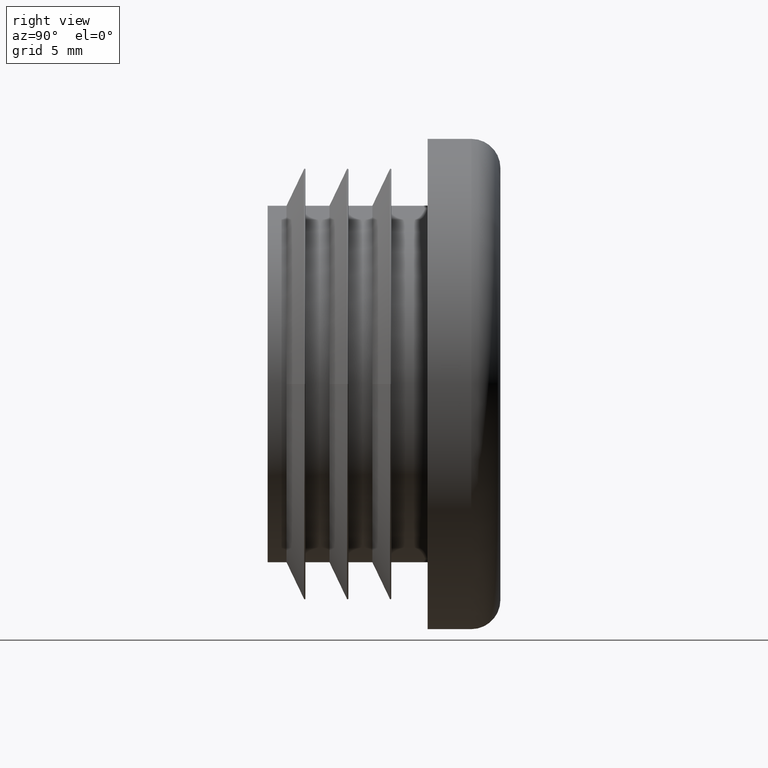
[diagram: clean part render]
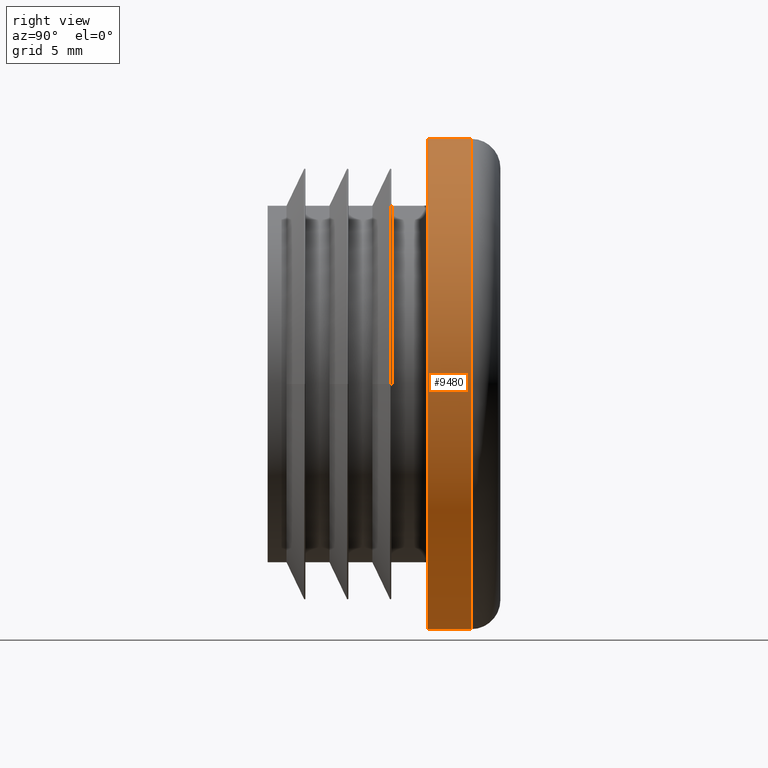
[diagram: same view with one face highlighted and labeled with its STEP entity id]
A machine part, right view. The second image highlights one B-rep face of the part: STEP entity #9480.
In plain terms, the highlighted cylindrical surface (partial cylindrical patch) has radius 16.85 mm, axis along (-0, -1, -0).
Its self-contained STEP definition (entity closure, byte-faithful):
#194 = ORIENTED_EDGE ( 'NONE', *, *, #4196, .F. ) ;
#592 = CARTESIAN_POINT ( 'NONE',  ( 0.000000000000000000, 11.00000000000000000, 0.000000000000000000 ) ) ;
#626 = VERTEX_POINT ( 'NONE', #3226 ) ;
#1073 = LINE ( 'NONE', #3948, #3381 ) ;
#1389 = CIRCLE ( 'NONE', #2981, 16.84999999999999787 ) ;
#1827 = VERTEX_POINT ( 'NONE', #7189 ) ;
#2472 = VERTEX_POINT ( 'NONE', #6409 ) ;
#2981 = AXIS2_PLACEMENT_3D ( 'NONE', #12814, #9646, #7417 ) ;
#3226 = CARTESIAN_POINT ( 'NONE',  ( 0.000000000000000000, 14.00000000000000000, -16.84999999999999787 ) ) ;
#3381 = VECTOR ( 'NONE', #11406, 1000.000000000000000 ) ;
#3948 = CARTESIAN_POINT ( 'NONE',  ( 2.063529856563289455E-15, 11.00000000000000000, 16.84999999999999787 ) ) ;
#3953 = CYLINDRICAL_SURFACE ( 'NONE', #11929, 16.84999999999999787 ) ;
#4196 = EDGE_CURVE ( 'NONE', #4332, #1827, #1389, .T. ) ;
#4332 = VERTEX_POINT ( 'NONE', #5656 ) ;
#4528 = ORIENTED_EDGE ( 'NONE', *, *, #10759, .T. ) ;
#4641 = ORIENTED_EDGE ( 'NONE', *, *, #12659, .T. ) ;
#4905 = DIRECTION ( 'NONE',  ( -0.000000000000000000, -1.000000000000000000, -0.000000000000000000 ) ) ;
#5498 = ORIENTED_EDGE ( 'NONE', *, *, #10191, .F. ) ;
#5656 = CARTESIAN_POINT ( 'NONE',  ( 0.000000000000000000, 11.00000000000000178, -16.84999999999999787 ) ) ;
#5893 = DIRECTION ( 'NONE',  ( -0.000000000000000000, -1.000000000000000000, -0.000000000000000000 ) ) ;
#6024 = EDGE_LOOP ( 'NONE', ( #4528, #4641, #194, #5498 ) ) ;
#6409 = CARTESIAN_POINT ( 'NONE',  ( 2.063529856563289455E-15, 14.00000000000000000, 16.84999999999999787 ) ) ;
#7189 = CARTESIAN_POINT ( 'NONE',  ( 2.063529856563289455E-15, 11.00000000000000178, 16.84999999999999787 ) ) ;
#7417 = DIRECTION ( 'NONE',  ( 0.000000000000000000, 0.000000000000000000, -1.000000000000000000 ) ) ;
#7925 = CIRCLE ( 'NONE', #8351, 16.84999999999999787 ) ;
#8019 = DIRECTION ( 'NONE',  ( -0.000000000000000000, -1.000000000000000000, -0.000000000000000000 ) ) ;
#8090 = CARTESIAN_POINT ( 'NONE',  ( 0.000000000000000000, 11.00000000000000000, -16.84999999999999787 ) ) ;
#8351 = AXIS2_PLACEMENT_3D ( 'NONE', #12331, #5893, #9189 ) ;
#9128 = DIRECTION ( 'NONE',  ( 0.000000000000000000, 0.000000000000000000, -1.000000000000000000 ) ) ;
#9189 = DIRECTION ( 'NONE',  ( 0.000000000000000000, 0.000000000000000000, 1.000000000000000000 ) ) ;
#9480 = ADVANCED_FACE ( 'NONE', ( #10296 ), #3953, .T. ) ;
#9605 = LINE ( 'NONE', #8090, #12605 ) ;
#9646 = DIRECTION ( 'NONE',  ( -0.000000000000000000, -1.000000000000000000, -0.000000000000000000 ) ) ;
#10191 = EDGE_CURVE ( 'NONE', #626, #4332, #9605, .T. ) ;
#10296 = FACE_OUTER_BOUND ( 'NONE', #6024, .T. ) ;
#10759 = EDGE_CURVE ( 'NONE', #626, #2472, #7925, .T. ) ;
#11406 = DIRECTION ( 'NONE',  ( -0.000000000000000000, -1.000000000000000000, -0.000000000000000000 ) ) ;
#11929 = AXIS2_PLACEMENT_3D ( 'NONE', #592, #8019, #9128 ) ;
#12331 = CARTESIAN_POINT ( 'NONE',  ( 0.000000000000000000, 14.00000000000000000, 0.000000000000000000 ) ) ;
#12605 = VECTOR ( 'NONE', #4905, 1000.000000000000000 ) ;
#12659 = EDGE_CURVE ( 'NONE', #2472, #1827, #1073, .T. ) ;
#12814 = CARTESIAN_POINT ( 'NONE',  ( 0.000000000000000000, 11.00000000000000178, 0.000000000000000000 ) ) ;